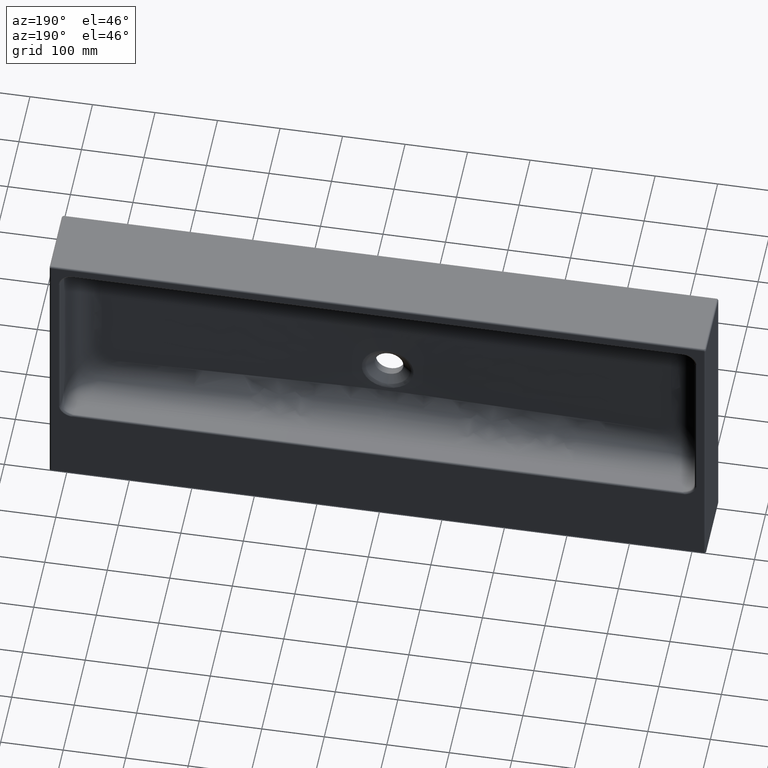
[diagram: clean part render]
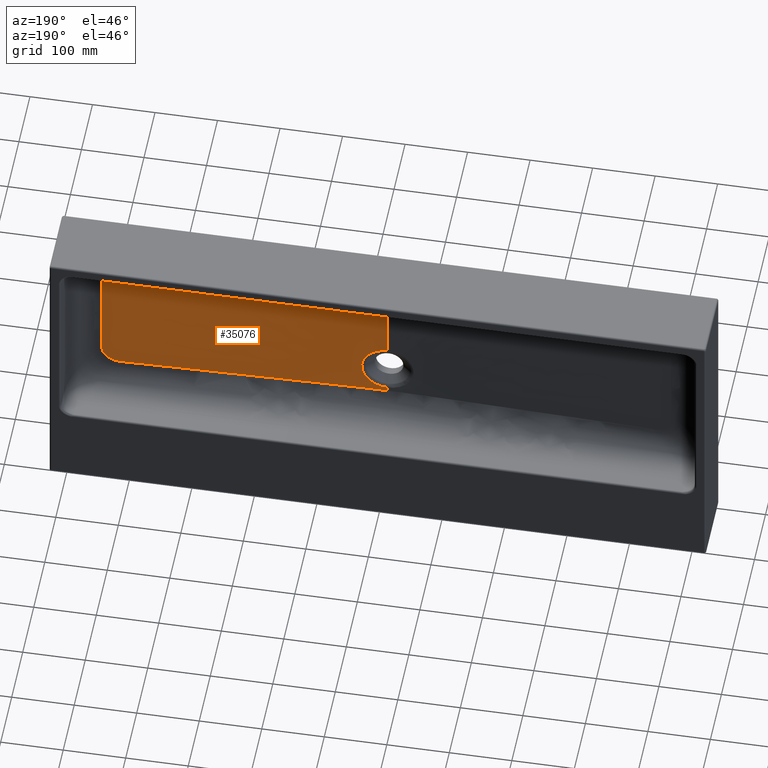
[diagram: same view with one face highlighted and labeled with its STEP entity id]
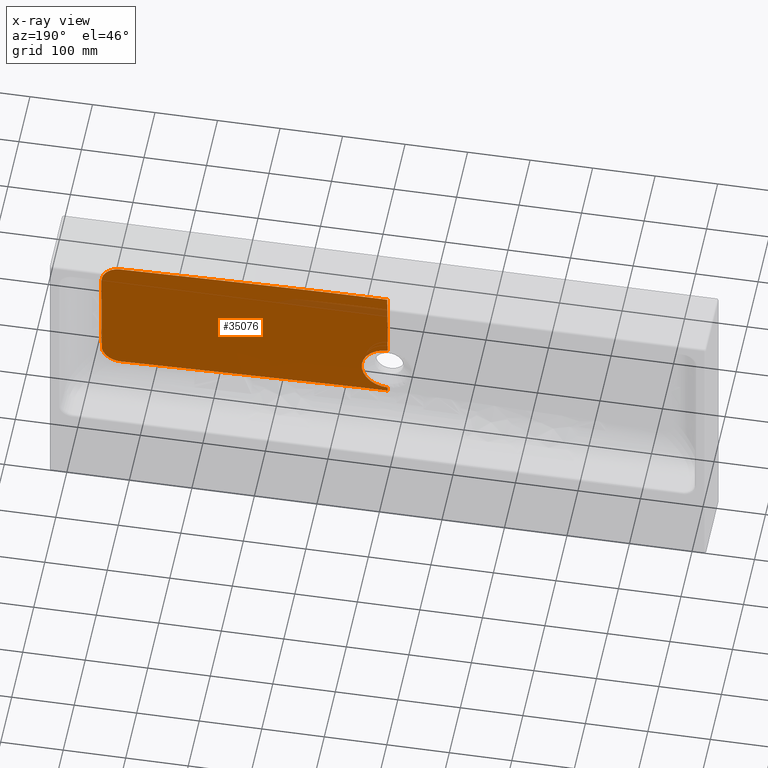
[diagram: x-ray of the same camera — body ghosted, the highlighted face saturated]
A machine part, auxiliary view. The second image highlights one B-rep face of the part: STEP entity #35076.
The next image is the same camera in x-ray: the body ghosted, the highlighted face saturated — about 3% of this face is hidden behind the body in this view.
In plain terms, the highlighted face is a freeform B-spline surface patch.
Its self-contained STEP definition (entity closure, byte-faithful):
#313 = CARTESIAN_POINT ( 'NONE',  ( 1021.623400597602500, 35.11831088944399000, 181.5091219100152100 ) ) ;
#634 = CARTESIAN_POINT ( 'NONE',  ( 963.0886725184714100, 33.59699475693897600, 181.5512573146580200 ) ) ;
#956 = CARTESIAN_POINT ( 'NONE',  ( 861.7747225841729900, 30.97614786959777400, 181.5514846070054800 ) ) ;
#1255 = CARTESIAN_POINT ( 'NONE',  ( 561.9999999999998900, 24.99999999999997200, 268.0000000000001100 ) ) ;
#1277 = CARTESIAN_POINT ( 'NONE',  ( 764.5169548511493100, 28.49577380924619500, 181.5527132625605600 ) ) ;
#1428 = ORIENTED_EDGE ( 'NONE', *, *, #26892, .T. ) ;
#1582 = CARTESIAN_POINT ( 'NONE',  ( 1213.724137342848100, 40.07586596130173000, -383.7240317683529700 ) ) ;
#1604 = CARTESIAN_POINT ( 'NONE',  ( 709.1017620840654000, 27.13085478846653600, 181.5515786589075200 ) ) ;
#1915 = CARTESIAN_POINT ( 'NONE',  ( 661.0929636913410800, 26.04627687419683500, 181.5517413832493500 ) ) ;
#2234 = CARTESIAN_POINT ( 'NONE',  ( 618.5232802804938500, 25.36220694323584000, 181.5513322176598500 ) ) ;
#2672 = CARTESIAN_POINT ( 'NONE',  ( 611.1207399397901600, 28.21606228405903800, 390.5348337664578400 ) ) ;
#2990 = CARTESIAN_POINT ( 'NONE',  ( 704.5328502587414100, 29.02039179156818000, 390.5340428901305900 ) ) ;
#3107 = EDGE_LOOP ( 'NONE', ( #46738, #47045, #50595, #1428 ) ) ;
#3313 = CARTESIAN_POINT ( 'NONE',  ( 787.1713451619999700, 30.46175096675713700, 390.5350289390984800 ) ) ;
#3506 = DIRECTION ( 'NONE',  ( -9.165702807759771400E-008, -0.02617694872021050400, 0.9996573249647555700 ) ) ;
#3635 = CARTESIAN_POINT ( 'NONE',  ( 850.7063838697965800, 31.80041971423069900, 390.5349990592713400 ) ) ;
#3962 = CARTESIAN_POINT ( 'NONE',  ( 908.5616670436387500, 33.11298868604931300, 390.5350426134197100 ) ) ;
#4282 = CARTESIAN_POINT ( 'NONE',  ( 1000.304281480325800, 35.29874075600175600, 390.5341696391911300 ) ) ;
#4459 = CARTESIAN_POINT ( 'NONE',  ( 599.9999999999998900, 28.20869239139523500, 390.5350171022338400 ) ) ;
#4615 = CARTESIAN_POINT ( 'NONE',  ( 1023.860106249768900, 35.87390952204071200, 390.5781779370694300 ) ) ;
#4942 = CARTESIAN_POINT ( 'NONE',  ( 1035.935118165208900, 36.15331382678920800, 388.7125657005682300 ) ) ;
#5272 = CARTESIAN_POINT ( 'NONE',  ( 1052.464036891400800, 36.43880926677684300, 374.0192162239613900 ) ) ;
#5597 = CARTESIAN_POINT ( 'NONE',  ( 1055.658616612428700, 36.40437555587529100, 358.8109136464218500 ) ) ;
#5916 = CARTESIAN_POINT ( 'NONE',  ( 1055.639448958948800, 36.34710574344535400, 350.5953471631783600 ) ) ;
#6234 = CARTESIAN_POINT ( 'NONE',  ( 1055.639658600240000, 35.99164824073148600, 274.6789616030683300 ) ) ;
#6448 = CARTESIAN_POINT ( 'NONE',  ( 634.5372285292289700, 25.09141385087794500, 253.4971377651405900 ) ) ;
#6559 = CARTESIAN_POINT ( 'NONE',  ( 1055.641225915584800, 35.94031351749450900, 218.1700299338035300 ) ) ;
#6865 = CARTESIAN_POINT ( 'NONE',  ( 1055.413268487892300, 35.94452431111410100, 207.7847182917197100 ) ) ;
#7167 = CARTESIAN_POINT ( 'NONE',  ( 1045.590452340323500, 35.72208401761403000, 189.1385577478045300 ) ) ;
#7478 = CARTESIAN_POINT ( 'NONE',  ( 1029.957393480005700, 35.33413165332837700, 181.8547857551584700 ) ) ;
#7710 = VECTOR ( 'NONE', #3506, 1000.000000000000100 ) ;
#7815 = CARTESIAN_POINT ( 'NONE',  ( 1019.444950068442400, 35.06160986790464300, 181.5197053093795900 ) ) ;
#8132 = CARTESIAN_POINT ( 'NONE',  ( 945.8831878737759100, 33.15060080147022600, 181.5517215922595500 ) ) ;
#8457 = CARTESIAN_POINT ( 'NONE',  ( 845.5321156743333400, 30.55817907852214400, 181.5518093005854900 ) ) ;
#8461 = CARTESIAN_POINT ( 'NONE',  ( 600.0000002286285500, 25.09141385106158900, 188.5090459245770700 ) ) ;
#8760 = CARTESIAN_POINT ( 'NONE',  ( 638.0000000000000000, 24.99999999999997200, 268.0000000000000000 ) ) ;
#8785 = CARTESIAN_POINT ( 'NONE',  ( 754.5317539832004700, 28.24567584298754500, 181.5518332986935100 ) ) ;
#9110 = CARTESIAN_POINT ( 'NONE',  ( 698.0276867809838000, 26.86780807831559100, 181.5521668289055100 ) ) ;
#9424 = CARTESIAN_POINT ( 'NONE',  ( 654.1363828704327300, 25.90694784722302300, 181.5513308771930100 ) ) ;
#9744 = CARTESIAN_POINT ( 'NONE',  ( 612.4402084247809600, 25.31385252057819800, 181.5523510575856700 ) ) ;
#10510 = CARTESIAN_POINT ( 'NONE',  ( 718.3941854915362900, 29.22729406987173900, 390.5343221946450300 ) ) ;
#10841 = CARTESIAN_POINT ( 'NONE',  ( 797.6113806045241300, 30.67162217921969600, 390.5338919371657200 ) ) ;
#10912 = EDGE_CURVE ( 'NONE', #51658, #47007, #24961, .T. ) ;
#11169 = CARTESIAN_POINT ( 'NONE',  ( 857.2272119211145300, 31.94475465395952400, 390.5350344044721900 ) ) ;
#11503 = CARTESIAN_POINT ( 'NONE',  ( 916.0016303005569400, 33.28625686224869200, 390.5350857157706100 ) ) ;
#11823 = CARTESIAN_POINT ( 'NONE',  ( 1007.193307023903500, 35.46640969033294500, 390.5356756764664400 ) ) ;
#12139 = CARTESIAN_POINT ( 'NONE',  ( 1025.940700291140300, 35.92442568829400800, 390.5296814239161400 ) ) ;
#12469 = CARTESIAN_POINT ( 'NONE',  ( 1037.130038797873600, 36.17862212579031900, 388.2537927187568100 ) ) ;
#12801 = CARTESIAN_POINT ( 'NONE',  ( 1053.797374335839300, 36.44790202197116700, 370.9364100650316200 ) ) ;
#13117 = CARTESIAN_POINT ( 'NONE',  ( 1055.655809466860300, 36.39929199753829200, 358.1051966047737100 ) ) ;
#13438 = CARTESIAN_POINT ( 'NONE',  ( 1055.639481358553000, 36.34513375289658700, 350.3005946740198100 ) ) ;
#13758 = CARTESIAN_POINT ( 'NONE',  ( 1055.639533776400900, 35.95921022667322800, 258.5437914030844700 ) ) ;
#13964 = CARTESIAN_POINT ( 'NONE',  ( 640.9399708072611500, 25.09141385087561800, 238.2477759871281900 ) ) ;
#14074 = CARTESIAN_POINT ( 'NONE',  ( 1055.632163011881600, 35.94194758410434800, 215.7041463250124000 ) ) ;
#14383 = CARTESIAN_POINT ( 'NONE',  ( 1055.009322000688800, 35.93723940739651100, 205.3344672641232500 ) ) ;
#14698 = CARTESIAN_POINT ( 'NONE',  ( 1043.802391672973000, 35.67909394354648400, 187.6452135047431400 ) ) ;
#15008 = CARTESIAN_POINT ( 'NONE',  ( 1028.937976899154100, 35.30796863415216800, 181.7299521967888400 ) ) ;
#15238 = CARTESIAN_POINT ( 'NONE',  ( 600.0000001368580300, 25.27360374821627100, 181.5514945624263100 ) ) ;
#15320 = CARTESIAN_POINT ( 'NONE',  ( 1015.084416324212300, 34.94801579792841300, 181.5756601402617600 ) ) ;
#15645 = CARTESIAN_POINT ( 'NONE',  ( 928.7606400481121200, 32.70678447307197000, 181.5517490916917900 ) ) ;
#15965 = CARTESIAN_POINT ( 'NONE',  ( 823.3961429463645300, 29.99075423922178300, 181.5514198063542600 ) ) ;
#16261 = CARTESIAN_POINT ( 'NONE',  ( 637.9999999999998900, 25.00000000000000400, 192.0000000000000000 ) ) ;
#16283 = CARTESIAN_POINT ( 'NONE',  ( 748.7472994180228600, 28.10139280537994100, 181.5515774018260500 ) ) ;
#16601 = CARTESIAN_POINT ( 'NONE',  ( 689.5729862866668300, 26.67148358943786200, 181.5520749237048500 ) ) ;
#16916 = CARTESIAN_POINT ( 'NONE',  ( 648.0172201247854700, 25.79075707124029600, 181.5518745028825300 ) ) ;
#17179 = EDGE_CURVE ( 'NONE', #31518, #47007, #27431, .T. ) ;
#17238 = CARTESIAN_POINT ( 'NONE',  ( 606.8718011944415600, 25.28547017146445700, 181.5521858905507600 ) ) ;
#17655 = CARTESIAN_POINT ( 'NONE',  ( 628.6635774819435500, 28.27221586663515400, 390.5347844136464300 ) ) ;
#17975 = CARTESIAN_POINT ( 'NONE',  ( 733.4118843636484800, 29.46982372109912900, 390.5331086122432700 ) ) ;
#18294 = CARTESIAN_POINT ( 'NONE',  ( 808.5119697404898000, 30.89552658912590000, 390.5339930370590200 ) ) ;
#18616 = CARTESIAN_POINT ( 'NONE',  ( 866.0929955698483100, 32.14246350937499800, 390.5350060872988800 ) ) ;
#18936 = CARTESIAN_POINT ( 'NONE',  ( 928.5871514970349400, 33.58111254492978000, 390.5351199493187600 ) ) ;
#19256 = CARTESIAN_POINT ( 'NONE',  ( 1011.342049892131100, 35.56758005594588200, 390.5392394020908000 ) ) ;
#19582 = CARTESIAN_POINT ( 'NONE',  ( 1028.003149932335000, 35.97407044681134600, 390.4310131209712200 ) ) ;
#19900 = CARTESIAN_POINT ( 'NONE',  ( 1040.578057812122800, 36.24955688452353500, 386.6745661287888000 ) ) ;
#20222 = CARTESIAN_POINT ( 'NONE',  ( 1054.479039000112200, 36.44855165040883800, 368.8040734131417900 ) ) ;
#20542 = CARTESIAN_POINT ( 'NONE',  ( 1055.646384891205100, 36.39605509003889200, 357.6813010420218000 ) ) ;
#20853 = CARTESIAN_POINT ( 'NONE',  ( 1055.640299578585700, 36.32475211627024700, 347.2339032509373700 ) ) ;
#21162 = CARTESIAN_POINT ( 'NONE',  ( 1055.639495407081500, 35.94374332391503700, 246.5982070277572700 ) ) ;
#21364 = CARTESIAN_POINT ( 'NONE',  ( 641.0357261019474900, 25.09141385087567900, 222.4230372308879900 ) ) ;
#21469 = CARTESIAN_POINT ( 'NONE',  ( 1055.673893952715200, 35.94432042759317600, 214.2213663168085100 ) ) ;
#21771 = CARTESIAN_POINT ( 'NONE',  ( 1054.233694619604400, 35.92133767073746500, 202.4220939708882000 ) ) ;
#22074 = CARTESIAN_POINT ( 'NONE',  ( 1040.760430115379400, 35.60502094392798300, 185.6104212057866200 ) ) ;
#22387 = CARTESIAN_POINT ( 'NONE',  ( 1027.282619039995600, 35.26525941990328100, 181.6059123857720600 ) ) ;
#22705 = CARTESIAN_POINT ( 'NONE',  ( 1006.393870311569800, 34.72209959331592400, 181.5468143487381700 ) ) ;
#23024 = CARTESIAN_POINT ( 'NONE',  ( 911.7476691995490200, 32.26629559156197800, 181.5516680002147300 ) ) ;
#23346 = CARTESIAN_POINT ( 'NONE',  ( 819.5553447967421300, 29.89250265137794900, 181.5514397500825200 ) ) ;
#23643 = CARTESIAN_POINT ( 'NONE',  ( 600.0000527872473400, 40.07586596130173000, -383.7240845556007100 ) ) ;
#23665 = CARTESIAN_POINT ( 'NONE',  ( 737.6134540640680400, 27.82477522172134600, 181.5521924948932300 ) ) ;
#23988 = CARTESIAN_POINT ( 'NONE',  ( 683.8057716568494000, 26.53964613384823000, 181.5539302695312400 ) ) ;
#24300 = CARTESIAN_POINT ( 'NONE',  ( 642.5715573604231800, 25.69342963747405800, 181.5521739294431400 ) ) ;
#24617 = CARTESIAN_POINT ( 'NONE',  ( 601.6652793698519900, 25.27360375341639900, 181.5514943967702400 ) ) ;
#24961 = B_SPLINE_CURVE_WITH_KNOTS ( 'NONE', 3,
 ( #87735, #35928, #80343, #43448, #95175, #50972, #6448, #58471, #13964, #65872, #21364, #73239, #28804, #80652, #36250, #88047, #43773, #95491, #51286 ),
 .UNSPECIFIED., .F., .F.,
 ( 4, 1, 1, 1, 1, 1, 1, 1, 1, 1, 1, 1, 1, 1, 1, 1, 4 ),
 ( 0.0000000000000000000, 0.05636987962702838500, 0.1180171098526425800, 0.1822733064240303600, 0.2458800151650138200, 0.3095689003608350100, 0.3740717940176618300, 0.4361016990770609800, 0.5000000012270334700, 0.5563698829231316100, 0.6180171148741180300, 0.6822733125791531400, 0.7458800217300746200, 0.8095689066087573500, 0.8740717992164979100, 0.9361017026153687400, 1.000000000000000000 ),
 .UNSPECIFIED. ) ;
#25065 = CARTESIAN_POINT ( 'NONE',  ( 647.5323710945892800, 28.38574525996030600, 390.5311374682282800 ) ) ;
#25386 = CARTESIAN_POINT ( 'NONE',  ( 746.9988367189605500, 29.70456712909245700, 390.5351151525355800 ) ) ;
#25695 = CARTESIAN_POINT ( 'NONE',  ( 816.0813179238559800, 31.05382482794960800, 390.5347532142181400 ) ) ;
#26008 = CARTESIAN_POINT ( 'NONE',  ( 877.5057966551920600, 32.39994812306701300, 390.5350369373166500 ) ) ;
#26018 = FACE_OUTER_BOUND ( 'NONE', #3107, .T. ) ;
#26336 = CARTESIAN_POINT ( 'NONE',  ( 944.0254546832128400, 33.94594088345259300, 390.5350040958475700 ) ) ;
#26658 = CARTESIAN_POINT ( 'NONE',  ( 1015.496737259815200, 35.66884416951435800, 390.5231334399548500 ) ) ;
#26892 = EDGE_CURVE ( 'NONE', #47974, #31518, #63700, .T. ) ;
#26977 = CARTESIAN_POINT ( 'NONE',  ( 1029.361032772088700, 36.00620141322961100, 390.3030364284588200 ) ) ;
#27306 = CARTESIAN_POINT ( 'NONE',  ( 1045.458980296990100, 36.33927636732359200, 383.0885557222073300 ) ) ;
#27431 = LINE ( 'NONE', #49022, #7710 ) ;
#27631 = CARTESIAN_POINT ( 'NONE',  ( 1054.902588436484400, 36.44684258266793400, 367.1837214521319200 ) ) ;
#27945 = CARTESIAN_POINT ( 'NONE',  ( 1055.640692874078000, 36.39445140637569400, 357.4745019460455600 ) ) ;
#28260 = CARTESIAN_POINT ( 'NONE',  ( 1055.640756009400500, 36.26705308299995100, 338.1110265207416900 ) ) ;
#28582 = CARTESIAN_POINT ( 'NONE',  ( 1055.635318427919200, 35.93639003608340900, 234.7956075040808300 ) ) ;
#28804 = CARTESIAN_POINT ( 'NONE',  ( 635.1228780381764000, 25.09141385088092900, 207.3904439482483600 ) ) ;
#28906 = CARTESIAN_POINT ( 'NONE',  ( 1055.656743056690400, 35.94527952524167300, 212.7374009212730900 ) ) ;
#29218 = CARTESIAN_POINT ( 'NONE',  ( 1053.164697156145400, 35.89816314407198700, 199.5725187328242200 ) ) ;
#29529 = CARTESIAN_POINT ( 'NONE',  ( 1037.917378491780900, 35.53483053011176900, 184.1693943095726200 ) ) ;
#29848 = CARTESIAN_POINT ( 'NONE',  ( 1025.935026715625300, 35.23032130389775300, 181.5637407049092900 ) ) ;
#30158 = CARTESIAN_POINT ( 'NONE',  ( 997.7075519216018600, 34.49626422116420300, 181.5500465681071200 ) ) ;
#30484 = CARTESIAN_POINT ( 'NONE',  ( 894.8739038019565400, 31.82997158186766400, 181.5514988530639500 ) ) ;
#30819 = CARTESIAN_POINT ( 'NONE',  ( 812.0126354395901000, 29.69977230117165900, 181.5518796064515600 ) ) ;
#31123 = CARTESIAN_POINT ( 'NONE',  ( -13.72408455560103500, 40.07586596130147400, 229.9999472127526000 ) ) ;
#31147 = CARTESIAN_POINT ( 'NONE',  ( 721.6655529839980500, 27.43402731989561300, 181.5531493185322900 ) ) ;
#31474 = CARTESIAN_POINT ( 'NONE',  ( 678.5241361492080600, 26.42091561567260900, 181.5530013471022200 ) ) ;
#31518 = VERTEX_POINT ( 'NONE', #15238 ) ;
#31788 = CARTESIAN_POINT ( 'NONE',  ( 636.0686283185584700, 25.58522769714284100, 181.5513130834117400 ) ) ;
#32543 = CARTESIAN_POINT ( 'NONE',  ( 661.2178070730459500, 28.50305098911880100, 390.5317727284821700 ) ) ;
#32847 = CARTESIAN_POINT ( 'NONE',  ( 755.5967733918972700, 29.85894625728374800, 390.5339602060786300 ) ) ;
#33174 = CARTESIAN_POINT ( 'NONE',  ( 821.9002506935012200, 31.17671831945764500, 390.5350540546721700 ) ) ;
#33482 = CARTESIAN_POINT ( 'NONE',  ( 884.4957089161222300, 32.55887662727641900, 390.5350065439128600 ) ) ;
#33799 = CARTESIAN_POINT ( 'NONE',  ( 959.7768244297888000, 34.32119994397875500, 390.5350387548743900 ) ) ;
#34125 = CARTESIAN_POINT ( 'NONE',  ( 1018.973206775444300, 35.75386772125861500, 390.5289432227657500 ) ) ;
#34448 = CARTESIAN_POINT ( 'NONE',  ( 1030.368906367078600, 36.02970827228964600, 390.1693335574535100 ) ) ;
#34763 = CARTESIAN_POINT ( 'NONE',  ( 1047.958453194877400, 36.38040851720492000, 380.6165424883462300 ) ) ;
#35076 = ADVANCED_FACE ( 'NONE', ( #26018 ), #42094, .T. ) ;
#35083 = CARTESIAN_POINT ( 'NONE',  ( 1055.411774675811800, 36.43908077565390600, 364.4439634195274500 ) ) ;
#35407 = CARTESIAN_POINT ( 'NONE',  ( 1055.633398403315800, 36.38665213575343000, 356.3929285229742700 ) ) ;
#35454 =( BOUNDED_CURVE ( )  B_SPLINE_CURVE ( 1, ( #78711, #4459 ),
 .UNSPECIFIED., .F., .F. ) 
 B_SPLINE_CURVE_WITH_KNOTS ( ( 2, 2 ),
 ( 0.0000000000000000000, 1.000000000000000000 ),
 .UNSPECIFIED. ) 
 CURVE ( )  GEOMETRIC_REPRESENTATION_ITEM ( )  RATIONAL_B_SPLINE_CURVE ( ( 0.9999999664502322600, 0.9999999664502322600 ) ) 
 REPRESENTATION_ITEM ( '' )  );
#35722 = CARTESIAN_POINT ( 'NONE',  ( 1055.639574594271400, 36.19256092580796000, 325.0398485697381800 ) ) ;
#35928 = CARTESIAN_POINT ( 'NONE',  ( 602.4492117576780900, 25.09141385087876900, 271.4910436585623200 ) ) ;
#36037 = CARTESIAN_POINT ( 'NONE',  ( 1055.636337604102900, 35.93634124878965300, 226.9993567939001500 ) ) ;
#36250 = CARTESIAN_POINT ( 'NONE',  ( 623.4971155566834100, 25.09141385089541000, 195.4628021945926500 ) ) ;
#36357 = CARTESIAN_POINT ( 'NONE',  ( 1055.626406905810700, 35.94602204525084200, 211.2515842894306100 ) ) ;
#36672 = CARTESIAN_POINT ( 'NONE',  ( 1051.777552690210800, 35.86704238041040300, 196.7893601346413600 ) ) ;
#36982 = CARTESIAN_POINT ( 'NONE',  ( 1036.098756357891500, 35.48952281704979600, 183.4247719305627100 ) ) ;
#37293 = CARTESIAN_POINT ( 'NONE',  ( 1024.883580086928500, 35.20302420828348700, 181.5437656675146300 ) ) ;
#37605 = CARTESIAN_POINT ( 'NONE',  ( 986.1418665991734500, 34.19568002382426600, 181.5505036768211900 ) ) ;
#37936 = CARTESIAN_POINT ( 'NONE',  ( 878.2049833771239900, 31.39958546910764900, 181.5521412378076000 ) ) ;
#38256 = CARTESIAN_POINT ( 'NONE',  ( 799.8549055013818400, 29.38980939671589000, 181.5530319677302200 ) ) ;
#38562 = CARTESIAN_POINT ( 'NONE',  ( 599.9999472127524300, 40.07586596130119700, 843.7240845556010500 ) ) ;
#38584 = CARTESIAN_POINT ( 'NONE',  ( 714.4982317275512300, 27.26050741126799400, 181.5517891742188400 ) ) ;
#38904 = CARTESIAN_POINT ( 'NONE',  ( 673.6588003927564600, 26.31348184562038700, 181.5515115791733600 ) ) ;
#39231 = CARTESIAN_POINT ( 'NONE',  ( 627.8016308077691300, 25.46643286613431200, 181.5515806202473600 ) ) ;
#39987 = CARTESIAN_POINT ( 'NONE',  ( 672.0619995164524900, 28.61193222343893800, 390.5355148226680100 ) ) ;
#40322 = CARTESIAN_POINT ( 'NONE',  ( 767.5758324042561800, 30.08064658182431800, 390.5322515717246600 ) ) ;
#40648 = CARTESIAN_POINT ( 'NONE',  ( 831.8556494313853600, 31.38932625444070700, 390.5349879353132100 ) ) ;
#40972 = CARTESIAN_POINT ( 'NONE',  ( 893.9632597109629200, 32.77548315324622800, 390.5350279089492500 ) ) ;
#41304 = CARTESIAN_POINT ( 'NONE',  ( 975.8063264416799700, 34.70589829367752100, 390.5351423044797900 ) ) ;
#41632 = CARTESIAN_POINT ( 'NONE',  ( 1021.070634801892100, 35.80553491466325500, 390.5678869740482400 ) ) ;
#41951 = CARTESIAN_POINT ( 'NONE',  ( 1033.415012578654800, 36.09877200818833400, 389.5396467713914000 ) ) ;
#42094 =( BOUNDED_SURFACE ( )  B_SPLINE_SURFACE ( 1, 2, ( 
 ( #53433, #90034, #45800, #1255, #53313, #8760, #60793, #16261, #68164 ),
 ( #23643, #75545, #31123, #82946, #38562, #90358, #46128, #1582, #53634 ) ),
 .UNSPECIFIED., .F., .T., .T. ) 
 B_SPLINE_SURFACE_WITH_KNOTS ( ( 2, 2 ),
 ( 3, 2, 2, 2, 3 ),
 ( 0.0000000000000000000, 575.9214384548213300 ),
 ( 0.0000000000000000000, 964.0355376855017100, 1928.071075371004100, 2892.106613056505900, 3856.142150742006800 ),
 .UNSPECIFIED. ) 
 GEOMETRIC_REPRESENTATION_ITEM ( )  RATIONAL_B_SPLINE_SURFACE ( (
 ( 1.000000000000000000, 0.7071067811865474600, 1.000000000000000000, 0.7071067811865474600, 1.000000000000000000, 0.7071067811865474600, 1.000000000000000000, 0.7071067811865474600, 1.000000000000000000),
 ( 1.000000000000000000, 0.7071067811865474600, 1.000000000000000000, 0.7071067811865474600, 1.000000000000000000, 0.7071067811865474600, 1.000000000000000000, 0.7071067811865474600, 1.000000000000000000) ) ) 
 REPRESENTATION_ITEM ( '' )  SURFACE ( )  );
#42270 = CARTESIAN_POINT ( 'NONE',  ( 1050.119239866513200, 36.41178927206269800, 377.9155280795838500 ) ) ;
#42599 = CARTESIAN_POINT ( 'NONE',  ( 1055.626193712265600, 36.41973568508060300, 361.0677909744441100 ) ) ;
#42920 = CARTESIAN_POINT ( 'NONE',  ( 1055.640689892259400, 36.35749784387932200, 352.1369763926228400 ) ) ;
#43240 = CARTESIAN_POINT ( 'NONE',  ( 1055.639602656908400, 36.10736539220747000, 307.8925451019216000 ) ) ;
#43448 = CARTESIAN_POINT ( 'NONE',  ( 615.2371750100817300, 25.09141385087889700, 268.8835808275272800 ) ) ;
#43554 = CARTESIAN_POINT ( 'NONE',  ( 1055.638547486861200, 35.93759712285024200, 223.0840014673575200 ) ) ;
#43773 = CARTESIAN_POINT ( 'NONE',  ( 608.2477420876605300, 25.09141385095324500, 189.0601438921524100 ) ) ;
#43883 = CARTESIAN_POINT ( 'NONE',  ( 1055.574587059333200, 35.94633031399260400, 209.7649148976763600 ) ) ;
#44197 = CARTESIAN_POINT ( 'NONE',  ( 1048.786778699965200, 35.79806136162942900, 192.3330163721584500 ) ) ;
#44527 = CARTESIAN_POINT ( 'NONE',  ( 1033.502396385900700, 35.42432752114969200, 182.5700254970588800 ) ) ;
#44850 = CARTESIAN_POINT ( 'NONE',  ( 1023.073281409394800, 35.15600349243825200, 181.5178672792238200 ) ) ;
#45174 = CARTESIAN_POINT ( 'NONE',  ( 968.8436438606703400, 33.74639278963782400, 181.5511638601710400 ) ) ;
#45499 = CARTESIAN_POINT ( 'NONE',  ( 867.2297196098935500, 31.11665321206209000, 181.5517371181832700 ) ) ;
#45800 = CARTESIAN_POINT ( 'NONE',  ( 561.9999999999998900, 24.99999999999998200, 230.0000000000001100 ) ) ;
#45826 = CARTESIAN_POINT ( 'NONE',  ( 777.0507976728789600, 28.81122535609781500, 181.5537450057349800 ) ) ;
#46128 = CARTESIAN_POINT ( 'NONE',  ( 1213.724084555600700, 40.07586596130147400, 230.0000527872476000 ) ) ;
#46155 = CARTESIAN_POINT ( 'NONE',  ( 710.4209436429659900, 27.16245775824337700, 181.5514322378442700 ) ) ;
#46478 = CARTESIAN_POINT ( 'NONE',  ( 666.3095504832939500, 26.15501080579215200, 181.5513328854956100 ) ) ;
#46738 = ORIENTED_EDGE ( 'NONE', *, *, #17179, .T. ) ;
#46788 = CARTESIAN_POINT ( 'NONE',  ( 620.6922804218145300, 25.38335375955340500, 181.5525406630085900 ) ) ;
#47007 = VERTEX_POINT ( 'NONE', #8461 ) ;
#47045 = ORIENTED_EDGE ( 'NONE', *, *, #10912, .F. ) ;
#47538 = CARTESIAN_POINT ( 'NONE',  ( 691.5029963430847600, 28.83967133528462400, 390.5308181613246500 ) ) ;
#47858 = CARTESIAN_POINT ( 'NONE',  ( 783.7817835121032900, 30.39464632452580900, 390.5351588977757200 ) ) ;
#47974 = VERTEX_POINT ( 'NONE', #70903 ) ;
#48177 = CARTESIAN_POINT ( 'NONE',  ( 844.2883759148232900, 31.65924220270160200, 390.5350117826727700 ) ) ;
#48499 = CARTESIAN_POINT ( 'NONE',  ( 906.1046127038615600, 33.05595901574874800, 390.5350333627816300 ) ) ;
#48831 = CARTESIAN_POINT ( 'NONE',  ( 992.0790521480166700, 35.09903337980609500, 390.5352120935291400 ) ) ;
#49022 = CARTESIAN_POINT ( 'NONE',  ( 600.0000263936235600, 32.53793298065086500, -95.86204227780037000 ) ) ;
#49151 = CARTESIAN_POINT ( 'NONE',  ( 1023.164784975828300, 35.85694755001620800, 390.5849357038546800 ) ) ;
#49476 = CARTESIAN_POINT ( 'NONE',  ( 1035.323399863611500, 36.14019594058805000, 388.9279182399481000 ) ) ;
#49806 = CARTESIAN_POINT ( 'NONE',  ( 1051.934896972513300, 36.43360526799107600, 375.0220125105092300 ) ) ;
#50119 = CARTESIAN_POINT ( 'NONE',  ( 1055.652943800959300, 36.40825975465315200, 359.3751049184969000 ) ) ;
#50441 = CARTESIAN_POINT ( 'NONE',  ( 1055.639592647564300, 36.34850360989724300, 350.8032736506188500 ) ) ;
#50595 = ORIENTED_EDGE ( 'NONE', *, *, #64572, .T. ) ;
#50768 = CARTESIAN_POINT ( 'NONE',  ( 1055.639690481770900, 36.01438011874319800, 282.8631948517093500 ) ) ;
#50972 = CARTESIAN_POINT ( 'NONE',  ( 629.1525242293971600, 25.09141385087917800, 259.9120660037696700 ) ) ;
#51079 = CARTESIAN_POINT ( 'NONE',  ( 1055.642062686672300, 35.93910887208358000, 220.1383817927116700 ) ) ;
#51286 = CARTESIAN_POINT ( 'NONE',  ( 600.0000002286285500, 25.09141385106158900, 188.5090459245770700 ) ) ;
#51385 = CARTESIAN_POINT ( 'NONE',  ( 1055.467582338531900, 35.94532158493832000, 208.2787435144341500 ) ) ;
#51658 = VERTEX_POINT ( 'NONE', #73601 ) ;
#51699 = CARTESIAN_POINT ( 'NONE',  ( 1046.429666273409100, 35.74213350654139300, 189.9144490130562100 ) ) ;
#52027 = CARTESIAN_POINT ( 'NONE',  ( 1030.307435401854500, 35.34308624554928000, 181.9079111493798300 ) ) ;
#52350 = CARTESIAN_POINT ( 'NONE',  ( 1020.897688945371800, 35.09943226703080700, 181.5090887022738300 ) ) ;
#52686 = CARTESIAN_POINT ( 'NONE',  ( 951.6088250159055000, 33.29910839236734400, 181.5516185934537800 ) ) ;
#53015 = CARTESIAN_POINT ( 'NONE',  ( 859.0538372177984500, 30.90610070668910600, 181.5513998476085600 ) ) ;
#53313 = CARTESIAN_POINT ( 'NONE',  ( 599.9999999999998900, 24.99999999999997200, 268.0000000000001100 ) ) ;
#53338 = CARTESIAN_POINT ( 'NONE',  ( 760.4555045744037900, 28.39385366956245300, 181.5522918442482000 ) ) ;
#53433 = CARTESIAN_POINT ( 'NONE',  ( 599.9999999999998900, 25.00000000000000000, 192.0000000000000000 ) ) ;
#53634 = CARTESIAN_POINT ( 'NONE',  ( 600.0000527872473400, 40.07586596130173000, -383.7240845556007100 ) ) ;
#53659 = CARTESIAN_POINT ( 'NONE',  ( 702.6699934371849800, 26.97721993179648000, 181.5525834826132400 ) ) ;
#53982 = CARTESIAN_POINT ( 'NONE',  ( 658.6751565730859300, 25.99710037339915300, 181.5517453167382800 ) ) ;
#54302 = CARTESIAN_POINT ( 'NONE',  ( 614.3965202550430100, 25.32741272192251000, 181.5526215828015800 ) ) ;
#54741 = CARTESIAN_POINT ( 'NONE',  ( 605.5035803316599200, 28.20869382512296400, 390.5350715452423700 ) ) ;
#55063 = CARTESIAN_POINT ( 'NONE',  ( 709.0321838520554800, 29.08561364932671400, 390.5353931185521200 ) ) ;
#55384 = CARTESIAN_POINT ( 'NONE',  ( 794.0836556054619000, 30.60018943776841400, 390.5343047578244900 ) ) ;
#55706 = CARTESIAN_POINT ( 'NONE',  ( 852.8659158822807700, 31.84810213970058600, 390.5350093198334800 ) ) ;
#56026 = CARTESIAN_POINT ( 'NONE',  ( 913.5098656133710600, 33.22813035303514100, 390.5350732052398300 ) ) ;
#56353 = CARTESIAN_POINT ( 'NONE',  ( 1003.054341603660300, 35.36559790168545400, 390.5327252069192200 ) ) ;
#56683 = CARTESIAN_POINT ( 'NONE',  ( 1025.248153131897700, 35.90763581652397800, 390.5489320596932400 ) ) ;
#57002 = CARTESIAN_POINT ( 'NONE',  ( 1036.235090005560800, 36.15970179601878000, 388.6015790605031800 ) ) ;
#57325 = CARTESIAN_POINT ( 'NONE',  ( 1053.394328746617200, 36.44594166598141500, 371.9773235361988700 ) ) ;
#57643 = CARTESIAN_POINT ( 'NONE',  ( 1055.661123523483000, 36.40243174696778500, 358.5288783921076900 ) ) ;
#57955 = CARTESIAN_POINT ( 'NONE',  ( 1055.639418440985100, 36.34653284242004600, 350.5099035636666800 ) ) ;
#58266 = CARTESIAN_POINT ( 'NONE',  ( 1055.639575927994700, 35.96623208825504000, 262.5571139187931600 ) ) ;
#58471 = CARTESIAN_POINT ( 'NONE',  ( 638.4976377555542500, 25.09141385088016900, 246.1944183065224100 ) ) ;
#58582 = CARTESIAN_POINT ( 'NONE',  ( 1055.633811101681200, 35.94081690818306600, 217.1845880285714300 ) ) ;
#58899 = CARTESIAN_POINT ( 'NONE',  ( 1055.205452755556700, 35.94101269577945600, 206.3098931833263000 ) ) ;
#59211 = CARTESIAN_POINT ( 'NONE',  ( 1045.156696920461200, 35.71168477916163700, 188.7595954799364200 ) ) ;
#59523 = CARTESIAN_POINT ( 'NONE',  ( 1029.273807733674400, 35.31660152187587400, 181.7661805245082900 ) ) ;
#59835 = CARTESIAN_POINT ( 'NONE',  ( 1018.718091752952800, 35.04267297735793100, 181.5295158264001400 ) ) ;
#60176 = CARTESIAN_POINT ( 'NONE',  ( 934.4595339984307400, 32.85445054398594100, 181.5516893630260700 ) ) ;
#60491 = CARTESIAN_POINT ( 'NONE',  ( 834.9861585534941900, 30.28742830450189100, 181.5518510430088100 ) ) ;
#60793 = CARTESIAN_POINT ( 'NONE',  ( 637.9999999999998900, 24.99999999999998200, 230.0000000000000000 ) ) ;
#60818 = CARTESIAN_POINT ( 'NONE',  ( 752.5852410363984300, 28.19706696462102300, 181.5517102142814600 ) ) ;
#61135 = CARTESIAN_POINT ( 'NONE',  ( 691.6159100408235600, 26.71865803850009900, 181.5514036881768600 ) ) ;
#61452 = CARTESIAN_POINT ( 'NONE',  ( 652.0158973491744500, 25.86596374966358500, 181.5520786453622000 ) ) ;
#61768 = CARTESIAN_POINT ( 'NONE',  ( 608.6778317936810900, 25.29290332776406200, 181.5511596784735100 ) ) ;
#62204 = CARTESIAN_POINT ( 'NONE',  ( 622.7031082956573300, 28.24785235191400900, 390.5353954284662400 ) ) ;
#62522 = CARTESIAN_POINT ( 'NONE',  ( 723.2585923492538300, 29.30380638917400300, 390.5331289903161900 ) ) ;
#62834 = CARTESIAN_POINT ( 'NONE',  ( 804.8255361767256800, 30.81929075489844600, 390.5337362848105200 ) ) ;
#63145 = CARTESIAN_POINT ( 'NONE',  ( 859.4300459847141800, 31.99374857112567100, 390.5350386455638700 ) ) ;
#63462 = CARTESIAN_POINT ( 'NONE',  ( 923.5175290299749800, 33.46200602570870300, 390.5350918392626900 ) ) ;
#63700 = B_SPLINE_CURVE_WITH_KNOTS ( 'NONE', 3,
 ( #75038, #54741, #2672, #62204, #17655, #69562, #25065, #76943, #32543, #84355, #39987, #91763, #47538, #2990, #55063, #10510, #62522, #17975, #69871, #25386, #77253, #32847, #84673, #40322, #92088, #47858, #3313, #55384, #10841, #62834, #18294, #70189, #25695, #77570, #33174, #84995, #40648, #92418, #48177, #3635, #55706, #11169, #63145, #18616, #70505, #26008, #77881, #33482, #85307, #40972, #92742, #48499, #3962, #56026, #11503, #63462, #18936, #70816, #26336, #78214, #33799, #85628, #41304, #93066, #48831, #4282, #56353, #11823, #63782, #19256, #71140, #26658, #78544, #34125, #85935, #41632, #93386, #49151, #4615, #56683, #12139, #64099, #19582, #71453, #26977, #78865, #34448, #86264, #41951, #93714, #49476, #4942, #57002, #12469, #64424, #19900, #71775, #27306, #79188, #34763, #86583, #42270, #94029, #49806, #5272, #57325, #12801, #64748, #20222, #72085, #27631, #79508, #35083, #86896, #42599, #94342, #50119, #5597, #57643, #13117, #65058, #20542, #72398, #27945, #79827, #35407, #87218, #42920, #94661, #50441, #5916, #57955, #13438, #65360, #20853, #72703, #28260, #80130, #35722, #87526, #43240, #94976, #50768, #6234, #58266, #13758, #65670, #21162, #73022, #28582, #80446, #36037, #87842, #43554, #95281, #51079, #6559, #58582, #14074, #65978, #21469, #73342, #28906, #80759, #36357, #88151, #43883, #95599, #51385, #6865, #58899, #14383, #66291, #21771, #73652, #29218, #81059, #36672, #88464, #44197, #95904, #51699, #7167, #59211, #14698, #66603, #22074, #73964, #29529, #81368, #36982, #88775, #44527, #96216, #52027, #7478, #59523, #15008, #66912, #22387, #74281, #29848, #81676, #37293, #89094, #44850, #313, #52350, #7815, #59835, #15320, #67225, #22705, #74594, #30158, #81991, #37605, #89407, #45174, #634, #52686, #8132, #60176, #15645, #67552, #23024, #74924, #30484, #82324, #37936, #89725, #45499, #956, #53015, #8457, #60491, #15965, #67869, #23346, #75244, #30819, #82646, #38256, #90060, #45826, #1277, #53338, #8785, #60818, #16283, #68191, #23665, #75567, #31147, #82969, #38584, #90381, #46155, #1604, #53659, #9110, #61135, #16601, #68504, #23988, #75875, #31474, #83286, #38904, #90698, #46478, #1915, #53982, #9424, #61452, #16916, #68825, #24300, #76199, #31788, #83606, #39231, #91022, #46788, #2234, #54302, #9744, #61768, #17238, #69138, #24617, #76504 ),
 .UNSPECIFIED., .F., .F.,
 ( 4, 2, 2, 2, 2, 2, 2, 2, 2, 2, 2, 2, 2, 2, 2, 2, 2, 2, 2, 2, 2, 2, 2, 2, 2, 2, 2, 2, 2, 2, 2, 2, 2, 2, 2, 2, 2, 2, 2, 2, 2, 2, 2, 2, 2, 2, 2, 2, 2, 2, 2, 2, 2, 2, 2, 2, 2, 2, 2, 2, 1, 2, 2, 2, 2, 2, 2, 1, 1, 2, 2, 2, 2, 2, 2, 2, 2, 2, 2, 2, 2, 2, 2, 2, 2, 2, 2, 2, 2, 2, 2, 2, 2, 2, 2, 2, 2, 2, 2, 2, 2, 2, 2, 2, 2, 2, 2, 2, 2, 2, 2, 2, 2, 2, 2, 2, 2, 2, 2, 2, 2, 1, 2, 2, 2, 2, 2, 2, 2, 2, 2, 2, 2, 2, 2, 2, 2, 2, 2, 2, 2, 2, 2, 2, 2, 2, 2, 4 ),
 ( 415.6253621938140000, 450.2693592814131300, 484.9133563690122600, 519.5573534566113900, 536.8793520004112500, 554.2013505442111000, 588.8453476318108000, 606.1673461756108700, 623.4893447194108400, 640.8113432632110300, 649.4723425351110100, 658.1333418070109900, 675.4553403508110700, 684.1163396227112800, 692.7773388946113800, 701.4383381665115800, 705.7688378024616900, 710.0993374384117900, 718.7603367103118900, 727.4213359822119900, 731.7518356181622000, 736.0823352541124200, 744.7433345260126300, 749.0738341619628500, 753.4043337979128400, 762.0653330698132800, 766.3958327057633800, 770.7263323417136000, 779.3873316136139200, 788.0483308855141300, 796.7093301574143400, 805.3703294293145500, 814.0313287012147600, 818.3618283371647500, 820.5270781551398600, 822.6923279731149700, 824.8575777910900800, 825.9402027000775200, 827.0228276090650800, 828.1054525180525200, 829.1880774270401800, 830.2707023360276300, 830.8120147905214000, 831.3533272450151800, 833.5185770629891500, 834.0598895174825900, 834.6012019719760200, 835.6838268809632400, 840.0143265169127700, 842.1795763348877700, 844.3448261528626500, 846.5100759708375300, 848.6753257888126400, 850.8405756067875200, 851.9232005157749700, 853.0058254247624100, 855.1710752427372900, 857.3363250607120600, 857.8776375152058300, 858.4189499696995000, 858.6896061969462200, 858.8249343105696900, 858.9602624241931600, 859.5015748786868200, 860.5841997876741500, 860.7195279012976200, 860.8548560149211000, 861.1255122421678200, 861.6668246966612500, 865.9973243326089700, 874.6583236045045200, 883.3193228764000700, 900.6413214201909300, 917.9633199639819200, 926.6243192358773500, 935.2853185077729000, 943.9463177796683300, 948.2768174156160500, 950.4420672335900200, 952.6073170515638800, 954.7725668695378500, 955.8551917785247300, 956.9378166875116000, 958.0204415964985900, 959.1030665054855700, 960.1856914144724400, 961.2683163234593200, 963.4335661414330600, 965.5988159594068100, 967.7640657773805500, 969.9293155953541800, 974.2598152313019000, 975.3424401402887700, 976.4250650492754200, 978.5903148672492800, 980.7555646852230200, 981.8381895942097800, 982.9208145031965400, 985.0860643211700600, 985.6273767756632700, 986.1686892301565900, 987.2513141391427800, 987.7926265936355300, 988.3339390481285100, 989.4165639571140200, 990.4991888660995300, 991.5818137750850400, 995.9123134110261600, 1000.242813046967300, 1004.573312682908500, 1013.234311954790900, 1021.895311226673000, 1030.556310498555400, 1039.217309770437600, 1047.878309042319900, 1056.539308314202300, 1065.200307586084600, 1069.530807222025700, 1073.861306857967100, 1091.183305401731100, 1093.348555219701700, 1095.513805037672200, 1099.844304673612900, 1108.505303945494500, 1125.827302489257400, 1134.488301761139200, 1138.818801397080100, 1143.149301033020900, 1160.471299576784100, 1169.132298848665900, 1173.462798484606500, 1177.793298120547700, 1195.115296664311200, 1203.776295936192800, 1212.437295208074800, 1221.098294479956600, 1229.759293751838400, 1247.081292295602500, 1264.403290839366900, 1281.725289383131000, 1299.047287926895300, 1316.369286470659500, 1351.013283558189400, 1385.657280645718900, 1420.301277733248800, 1454.945274820778400, 1489.589271908308100, 1524.233268995837800 ),
 .UNSPECIFIED. ) ;
#63782 = CARTESIAN_POINT ( 'NONE',  ( 1008.575279160884900, 35.50010711850213600, 390.5381195002808000 ) ) ;
#64099 = CARTESIAN_POINT ( 'NONE',  ( 1027.318104121504300, 35.95764688022516300, 390.4713892878896800 ) ) ;
#64424 = CARTESIAN_POINT ( 'NONE',  ( 1037.714966014578700, 36.19080475827139800, 388.0042701704686600 ) ) ;
#64572 = EDGE_CURVE ( 'NONE', #51658, #47974, #35454, .T. ) ;
#64748 = CARTESIAN_POINT ( 'NONE',  ( 1054.318736548120600, 36.44866053556316400, 369.3420463336359500 ) ) ;
#65058 = CARTESIAN_POINT ( 'NONE',  ( 1055.651677381135400, 36.39768660119920400, 357.8932678106372700 ) ) ;
#65360 = CARTESIAN_POINT ( 'NONE',  ( 1055.639603147362800, 36.34234083083433800, 349.8820976737795800 ) ) ;
#65670 = CARTESIAN_POINT ( 'NONE',  ( 1055.639520267129200, 35.94796641455531000, 250.5646315312737900 ) ) ;
#65872 = CARTESIAN_POINT ( 'NONE',  ( 641.7376598223895600, 25.09141385088464900, 230.3271528225294300 ) ) ;
#65978 = CARTESIAN_POINT ( 'NONE',  ( 1055.630633669796000, 35.94231994345570800, 215.2104787738243200 ) ) ;
#66291 = CARTESIAN_POINT ( 'NONE',  ( 1054.521947762841100, 35.92736044045528800, 203.3918480425433600 ) ) ;
#66603 = CARTESIAN_POINT ( 'NONE',  ( 1042.831593692766100, 35.65557645079439900, 186.9349118758094900 ) ) ;
#66912 = CARTESIAN_POINT ( 'NONE',  ( 1027.938416078302000, 35.28222171243761800, 181.6403082390512800 ) ) ;
#67225 = CARTESIAN_POINT ( 'NONE',  ( 1012.188009002311000, 34.87273562056642400, 181.5588216408477000 ) ) ;
#67552 = CARTESIAN_POINT ( 'NONE',  ( 917.4066581519508600, 32.41275759509812800, 181.5517156771778700 ) ) ;
#67869 = CARTESIAN_POINT ( 'NONE',  ( 822.1107101357803200, 29.95786297963807600, 181.5514035921101200 ) ) ;
#68164 = CARTESIAN_POINT ( 'NONE',  ( 599.9999999999998900, 25.00000000000000000, 192.0000000000000000 ) ) ;
#68191 = CARTESIAN_POINT ( 'NONE',  ( 746.8524119819646800, 28.05424206400583700, 181.5515656607322800 ) ) ;
#68504 = CARTESIAN_POINT ( 'NONE',  ( 685.6691296897687400, 26.58200477956938100, 181.5534276188676000 ) ) ;
#68825 = CARTESIAN_POINT ( 'NONE',  ( 646.1375201027026400, 25.75649817169699700, 181.5514380374470700 ) ) ;
#69138 = CARTESIAN_POINT ( 'NONE',  ( 603.3655750784104200, 25.27581543322120800, 181.5524908709760200 ) ) ;
#69562 = CARTESIAN_POINT ( 'NONE',  ( 641.0740159072992100, 28.34121219880822600, 390.5354938397219400 ) ) ;
#69871 = CARTESIAN_POINT ( 'NONE',  ( 738.7008226377912500, 29.55932873372196900, 390.5342641511473400 ) ) ;
#70189 = CARTESIAN_POINT ( 'NONE',  ( 814.1726057185646800, 31.01376472071294500, 390.5345489052273800 ) ) ;
#70505 = CARTESIAN_POINT ( 'NONE',  ( 870.6094303829260100, 32.24395933377143600, 390.5350107130249200 ) ) ;
#70816 = CARTESIAN_POINT ( 'NONE',  ( 938.8456976130517000, 33.82318758287985400, 390.5350169027566400 ) ) ;
#70903 = CARTESIAN_POINT ( 'NONE',  ( 599.9999999999998900, 28.20869239139523500, 390.5350171022338400 ) ) ;
#71140 = CARTESIAN_POINT ( 'NONE',  ( 1012.726326415214700, 35.60132446017276200, 390.5359803126932000 ) ) ;
#71453 = CARTESIAN_POINT ( 'NONE',  ( 1029.022579822046500, 35.99822835218788000, 390.3389669890663600 ) ) ;
#71775 = CARTESIAN_POINT ( 'NONE',  ( 1042.671464159977900, 36.28964326983519600, 385.3476124126510200 ) ) ;
#72085 = CARTESIAN_POINT ( 'NONE',  ( 1054.771099973829200, 36.44764955943912800, 367.7253591625069500 ) ) ;
#72398 = CARTESIAN_POINT ( 'NONE',  ( 1055.642715628111500, 36.39496463126230500, 357.5399915163273500 ) ) ;
#72703 = CARTESIAN_POINT ( 'NONE',  ( 1055.640562761451100, 36.30865532815090500, 344.7379893155243200 ) ) ;
#73022 = CARTESIAN_POINT ( 'NONE',  ( 1055.636980454265300, 35.93794513660190400, 238.7141341630803900 ) ) ;
#73239 = CARTESIAN_POINT ( 'NONE',  ( 638.8836633982771200, 25.09141385088064900, 214.7628173640881100 ) ) ;
#73342 = CARTESIAN_POINT ( 'NONE',  ( 1055.668673464266700, 35.94463874480351300, 213.7270397239906000 ) ) ;
#73601 = CARTESIAN_POINT ( 'NONE',  ( 599.9999999999888600, 25.09141385091136600, 271.4909540696872300 ) ) ;
#73652 = CARTESIAN_POINT ( 'NONE',  ( 1053.554929834995400, 35.90673329968212400, 200.5139674717975100 ) ) ;
#73964 = CARTESIAN_POINT ( 'NONE',  ( 1039.660071289292800, 35.57798292981365100, 184.9962425012634000 ) ) ;
#74281 = CARTESIAN_POINT ( 'NONE',  ( 1026.274924939447800, 35.23914029381056400, 181.5720616644076400 ) ) ;
#74594 = CARTESIAN_POINT ( 'NONE',  ( 1003.497115968051300, 34.64677840629937600, 181.5481660046458500 ) ) ;
#74924 = CARTESIAN_POINT ( 'NONE',  ( 900.4844372796567300, 31.97498362984822900, 181.5516155541184300 ) ) ;
#75038 = CARTESIAN_POINT ( 'NONE',  ( 599.9999999999998900, 28.20869239139523500, 390.5350171022338400 ) ) ;
#75244 = CARTESIAN_POINT ( 'NONE',  ( 815.7470922566226400, 29.79513497054539100, 181.5515770520866600 ) ) ;
#75545 = CARTESIAN_POINT ( 'NONE',  ( -13.72403176835362800, 40.07586596130173000, -383.7241373428483400 ) ) ;
#75567 = CARTESIAN_POINT ( 'NONE',  ( 730.9022564320670200, 27.65948673566073500, 181.5537564070798200 ) ) ;
#75875 = CARTESIAN_POINT ( 'NONE',  ( 680.2332777322378700, 26.45910155189983500, 181.5537173660735300 ) ) ;
#76199 = CARTESIAN_POINT ( 'NONE',  ( 640.8863078646164700, 25.66465820214452300, 181.5523083982583300 ) ) ;
#76504 = CARTESIAN_POINT ( 'NONE',  ( 600.0000001368580300, 25.27360374821627100, 181.5514945624263100 ) ) ;
#76943 = CARTESIAN_POINT ( 'NONE',  ( 657.7324928185115600, 28.47136799761880300, 390.5308628343033200 ) ) ;
#77253 = CARTESIAN_POINT ( 'NONE',  ( 749.8264632604016200, 29.75482310489385900, 390.5350433441121300 ) ) ;
#77570 = CARTESIAN_POINT ( 'NONE',  ( 819.9444292176939400, 31.13528684594880100, 390.5350319915002600 ) ) ;
#77881 = CARTESIAN_POINT ( 'NONE',  ( 879.8247637660273300, 32.45256613182279200, 390.5350267796584400 ) ) ;
#78214 = CARTESIAN_POINT ( 'NONE',  ( 954.4933621580945600, 34.19500348651202200, 390.5350960388690300 ) ) ;
#78544 = CARTESIAN_POINT ( 'NONE',  ( 1016.883820300092200, 35.70267399322535300, 390.5168239055824400 ) ) ;
#78711 = CARTESIAN_POINT ( 'NONE',  ( 599.9999999999888600, 25.09141385091136600, 271.4909540696872300 ) ) ;
#78865 = CARTESIAN_POINT ( 'NONE',  ( 1030.034773492095600, 36.02195557040655400, 390.2182219915950400 ) ) ;
#79188 = CARTESIAN_POINT ( 'NONE',  ( 1046.328869817198700, 36.35406405400339500, 382.2916530462537700 ) ) ;
#79508 = CARTESIAN_POINT ( 'NONE',  ( 1055.248281801723100, 36.44319883758897300, 365.5487158804128900 ) ) ;
#79827 = CARTESIAN_POINT ( 'NONE',  ( 1055.633144825889800, 36.39115890329540500, 357.0345199701974400 ) ) ;
#80130 = CARTESIAN_POINT ( 'NONE',  ( 1055.640231168221400, 36.24108161712224100, 333.7314525082115900 ) ) ;
#80343 = CARTESIAN_POINT ( 'NONE',  ( 607.5769455912635500, 25.09141385087861000, 271.0358260969533100 ) ) ;
#80446 = CARTESIAN_POINT ( 'NONE',  ( 1055.635694287721000, 35.93609832780113300, 228.9481688836106100 ) ) ;
#80652 = CARTESIAN_POINT ( 'NONE',  ( 629.9120954090669800, 25.09141385087095700, 200.8474574263777900 ) ) ;
#80759 = CARTESIAN_POINT ( 'NONE',  ( 1055.647856113721200, 35.94554479541003600, 212.2423174838247300 ) ) ;
#81059 = CARTESIAN_POINT ( 'NONE',  ( 1052.276112086267200, 35.87831900846170200, 197.7108325122159400 ) ) ;
#81368 = CARTESIAN_POINT ( 'NONE',  ( 1037.321124256523500, 35.52001383378942700, 183.9095052216843000 ) ) ;
#81676 = CARTESIAN_POINT ( 'NONE',  ( 1025.240583118727000, 35.21229489994097200, 181.5497042392784100 ) ) ;
#81991 = CARTESIAN_POINT ( 'NONE',  ( 994.8146334958595400, 34.42106752224941600, 181.5508991228312800 ) ) ;
#82324 = CARTESIAN_POINT ( 'NONE',  ( 883.7350610563092900, 31.54229468996312800, 181.5519542143441900 ) ) ;
#82646 = CARTESIAN_POINT ( 'NONE',  ( 804.6405416438052500, 29.51168451579866300, 181.5525376916134500 ) ) ;
#82946 = CARTESIAN_POINT ( 'NONE',  ( -13.72413734284847700, 40.07586596130119700, 843.7240317683534800 ) ) ;
#82969 = CARTESIAN_POINT ( 'NONE',  ( 718.7250108892734500, 27.36261973352820900, 181.5525575936517800 ) ) ;
#83286 = CARTESIAN_POINT ( 'NONE',  ( 675.2377433931700400, 26.34812764377987500, 181.5516476847988100 ) ) ;
#83606 = CARTESIAN_POINT ( 'NONE',  ( 633.1692513995988100, 25.54126204134125500, 181.5528464619742400 ) ) ;
#84355 = CARTESIAN_POINT ( 'NONE',  ( 668.3834951044168500, 28.57334507107729800, 390.5341492724819500 ) ) ;
#84673 = CARTESIAN_POINT ( 'NONE',  ( 758.5416527946803200, 29.91285689927559600, 390.5332461685936200 ) ) ;
#84995 = CARTESIAN_POINT ( 'NONE',  ( 827.8264849764679000, 31.30282961141103800, 390.5350134184242300 ) ) ;
#85307 = CARTESIAN_POINT ( 'NONE',  ( 886.8488162756345900, 32.61259468878548500, 390.5350025834638900 ) ) ;
#85628 = CARTESIAN_POINT ( 'NONE',  ( 970.4345470760081300, 34.57667714932249900, 390.5350621594890900 ) ) ;
#85935 = CARTESIAN_POINT ( 'NONE',  ( 1019.671928283098600, 35.77106898056131700, 390.5411086549889300 ) ) ;
#86264 = CARTESIAN_POINT ( 'NONE',  ( 1032.048036391504900, 36.06833715628241800, 389.8860246833969000 ) ) ;
#86583 = CARTESIAN_POINT ( 'NONE',  ( 1048.716888511767800, 36.39193939160220700, 379.7389359837947600 ) ) ;
#86896 = CARTESIAN_POINT ( 'NONE',  ( 1055.588954641333200, 36.42699811363163300, 362.1959933512333100 ) ) ;
#87218 = CARTESIAN_POINT ( 'NONE',  ( 1055.637615327111700, 36.37092501507277100, 354.1181947541059000 ) ) ;
#87526 = CARTESIAN_POINT ( 'NONE',  ( 1055.639591980200500, 36.17001046052903500, 320.7265993673682400 ) ) ;
#87735 = CARTESIAN_POINT ( 'NONE',  ( 599.9999999999888600, 25.09141385091136600, 271.4909540696872300 ) ) ;
#87842 = CARTESIAN_POINT ( 'NONE',  ( 1055.637919569287300, 35.93721898499480000, 224.0639105019566000 ) ) ;
#88047 = CARTESIAN_POINT ( 'NONE',  ( 616.1944398832325800, 25.09141385084542700, 191.5023050065197200 ) ) ;
#88151 = CARTESIAN_POINT ( 'NONE',  ( 1055.614197086619200, 35.94624319842054700, 210.7559811598370100 ) ) ;
#88464 = CARTESIAN_POINT ( 'NONE',  ( 1050.116117549469200, 35.82901819420737900, 194.0752246571594000 ) ) ;
#88775 = CARTESIAN_POINT ( 'NONE',  ( 1035.477216770638500, 35.47396408863578200, 183.2011361657231400 ) ) ;
#89094 = CARTESIAN_POINT ( 'NONE',  ( 1023.797579215718800, 35.17482114115860300, 181.5264726578773200 ) ) ;
#89407 = CARTESIAN_POINT ( 'NONE',  ( 980.3694066333381400, 34.04571455040233000, 181.5505582258240900 ) ) ;
#89725 = CARTESIAN_POINT ( 'NONE',  ( 869.9664602569719100, 31.18717909426802800, 181.5518882580748500 ) ) ;
#90034 = CARTESIAN_POINT ( 'NONE',  ( 561.9999999999998900, 25.00000000000000400, 192.0000000000000000 ) ) ;
#90060 = CARTESIAN_POINT ( 'NONE',  ( 785.8726860255555900, 29.03444789106615100, 181.5539705086778500 ) ) ;
#90358 = CARTESIAN_POINT ( 'NONE',  ( 1213.724031768353600, 40.07586596130119700, 843.7241373428485100 ) ) ;
#90381 = CARTESIAN_POINT ( 'NONE',  ( 713.1199800010342600, 27.22730314672972100, 181.5515635883957900 ) ) ;
#90698 = CARTESIAN_POINT ( 'NONE',  ( 669.1043565001567700, 26.21447015228830300, 181.5518296753006100 ) ) ;
#91022 = CARTESIAN_POINT ( 'NONE',  ( 625.3313872562940800, 25.43547422180022400, 181.5525296327169300 ) ) ;
#91763 = CARTESIAN_POINT ( 'NONE',  ( 683.4431907490782100, 28.73921687628711700, 390.5338245977652600 ) ) ;
#92088 = CARTESIAN_POINT ( 'NONE',  ( 773.8644906593230000, 30.20058337895438100, 390.5337109897354800 ) ) ;
#92418 = CARTESIAN_POINT ( 'NONE',  ( 840.0862631625490200, 31.56752524665867200, 390.5350501915526100 ) ) ;
#92742 = CARTESIAN_POINT ( 'NONE',  ( 898.7826495460958500, 32.88645569737194300, 390.5350393746867300 ) ) ;
#93066 = CARTESIAN_POINT ( 'NONE',  ( 986.6286095835054100, 34.96707551539635300, 390.5350571212922500 ) ) ;
#93386 = CARTESIAN_POINT ( 'NONE',  ( 1021.770434308785900, 35.82278176067225700, 390.5810822414833900 ) ) ;
#93714 = CARTESIAN_POINT ( 'NONE',  ( 1035.010070676851200, 36.13343289670339700, 389.0329261084780200 ) ) ;
#94029 = CARTESIAN_POINT ( 'NONE',  ( 1050.763154413889200, 36.42010827812588800, 376.9697292882367500 ) ) ;
#94342 = CARTESIAN_POINT ( 'NONE',  ( 1055.649455427595700, 36.41019181931109500, 359.6572352923591900 ) ) ;
#94661 = CARTESIAN_POINT ( 'NONE',  ( 1055.639699615207700, 36.34931648073976600, 350.9239712169229500 ) ) ;
#94976 = CARTESIAN_POINT ( 'NONE',  ( 1055.639656445147000, 36.07223612151035800, 299.4695524109017700 ) ) ;
#95175 = CARTESIAN_POINT ( 'NONE',  ( 622.6095673022260800, 25.09141385087854900, 265.1229280632691100 ) ) ;
#95281 = CARTESIAN_POINT ( 'NONE',  ( 1055.639968470664600, 35.93852503665173300, 221.1212234589888800 ) ) ;
#95491 = CARTESIAN_POINT ( 'NONE',  ( 602.7764175917229700, 25.09141385073354500, 188.5087964564906400 ) ) ;
#95599 = CARTESIAN_POINT ( 'NONE',  ( 1055.547399860814300, 35.94620190953724400, 209.2693951317266100 ) ) ;
#95904 = CARTESIAN_POINT ( 'NONE',  ( 1046.834613060362500, 35.75177123593010700, 190.3110575483409500 ) ) ;
#96216 = CARTESIAN_POINT ( 'NONE',  ( 1032.067560037188500, 35.38801301671117000, 182.2109936898263000 ) ) ;